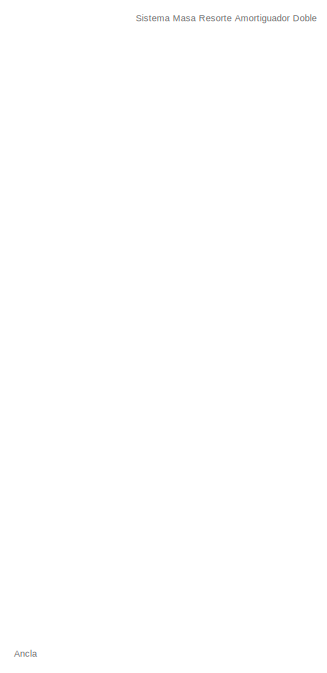
[diagram: root canvas - part 1/5, top left region]
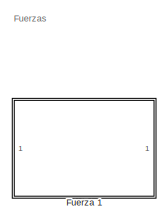
[diagram: root canvas - part 2/5, middle left region]
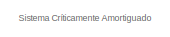
[diagram: root canvas - part 3/5, middle right region]
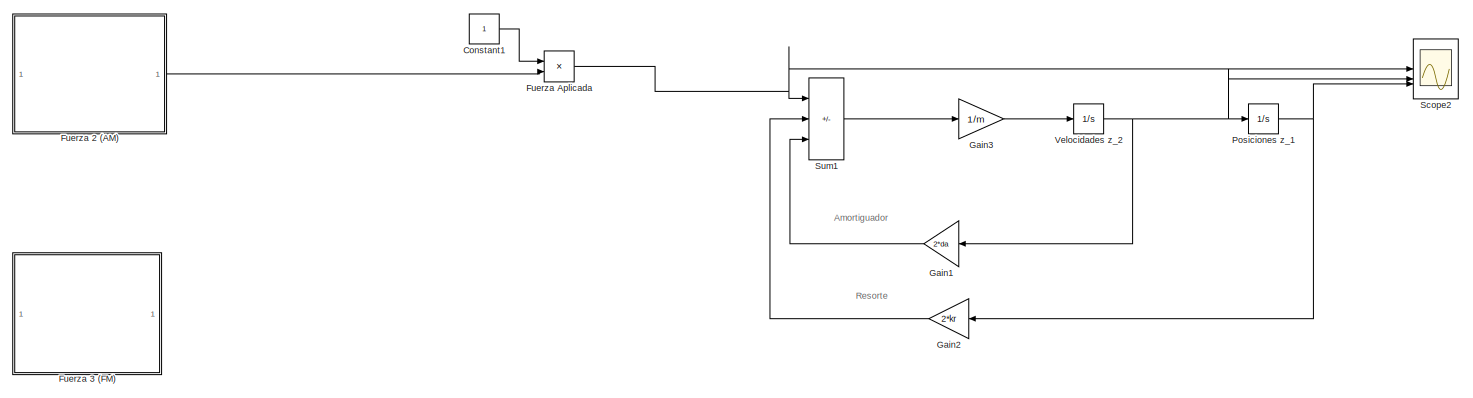
[diagram: root canvas - part 4/5, bottom left region]
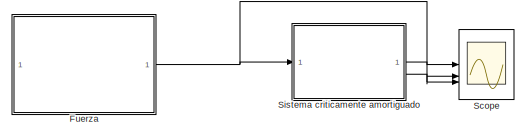
[diagram: root canvas - part 5/5, bottom right region]
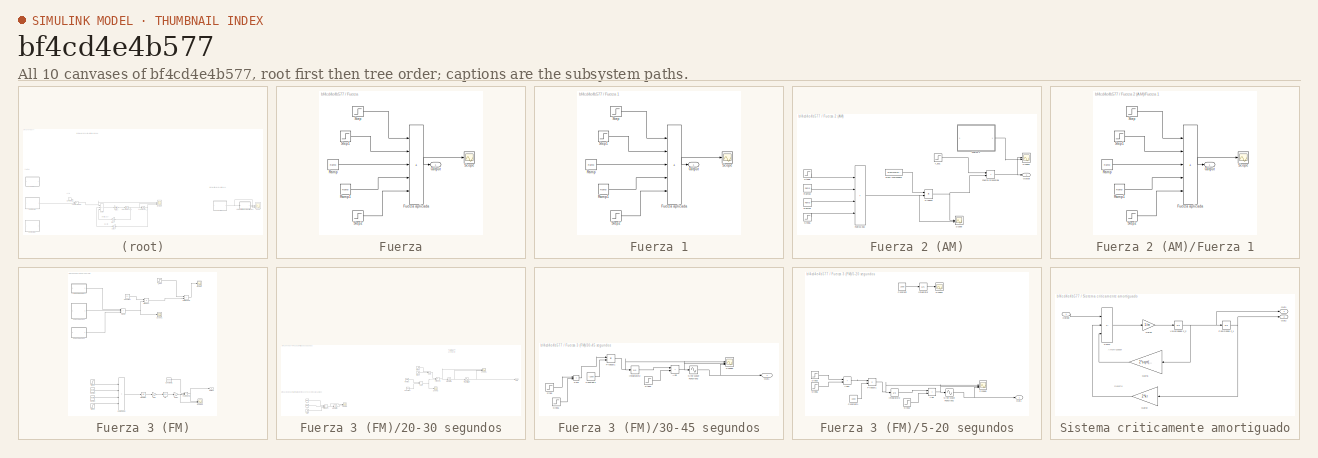
[diagram: thumbnail index - all 10 canvases of the model, root first then tree order]
MODEL slx_bf4cd4e4b577
KIND model
CONFIG AbsTol = auto
CONFIG EnableMultiTasking = off
CONFIG FixedStep = auto
CONFIG MaxStep = 0.01
CONFIG MinStep = auto
CONFIG RelTol = 1e-3
CONFIG SampleTimeConstraint = Unconstrained
CONFIG SolverName = VariableStepAuto
CONFIG StartTime = 0.0
CONFIG StopTime = 60
BLOCK [Constant] Constant1
BLOCK [SubSystem] Fuerza
BLOCK [SubSystem] Fuerza 1
BLOCK [Sum] Fuerza 1/Fuerza aplicada
  IconShape = rectangular
  Inputs = +++++
BLOCK [Outport] Fuerza 1/Output
BLOCK [Reference] Fuerza 1/Ramp  REF=simulink/Sources/Ramp
  SourceBlock = simulink/Sources/Ramp
  SourceType = Ramp
BLOCK [Reference] Fuerza 1/Ramp1  REF=simulink/Sources/Ramp
  SourceBlock = simulink/Sources/Ramp
  SourceType = Ramp
BLOCK [Scope] Fuerza 1/Scope
  Floating = off
  NumInputPorts = 1
  ScopeSpecificationString = Simulink.scopes.TimeScopeBlockCfg('CurrentConfiguration', extmgr.ConfigurationSet(extmgr.Configuration('Core','General UI',true),extmgr.Configuration('Core','Source UI',true),extmgr.Configuration('Sources','WiredSimulink',true,'DataLoggingVariableName','ScopeData1'),extmgr.Configuration('Visuals','Time Domain',true,'SerializedDisplays',{struct('MinYLimReal','3750.00000','MaxYLimReal','6250.00000',...<+1396ch>  <repeated x3 — deduplicated; at blocks: Scope>
BLOCK [Step] Fuerza 1/Step
  After = f1
  SampleTime = 0
  Time = 0
BLOCK [Step] Fuerza 1/Step1
  After = (f2-f1)
  SampleTime = 0
  Time = 5
BLOCK [Step] Fuerza 1/Step2
  After = f1-f3
  SampleTime = 0
  Time = 45
BLOCK [SubSystem] Fuerza 2 (AM)
BLOCK [FromWorkspace] Fuerza 2 (AM)/From Workspace
  VariableName = ST
BLOCK [SubSystem] Fuerza 2 (AM)/Fuerza 1
BLOCK [Sum] Fuerza 2 (AM)/Fuerza 1/Fuerza aplicada
  IconShape = rectangular
  Inputs = +++++
BLOCK [Outport] Fuerza 2 (AM)/Fuerza 1/Output
BLOCK [Reference] Fuerza 2 (AM)/Fuerza 1/Ramp  REF=simulink/Sources/Ramp
  SourceBlock = simulink/Sources/Ramp
  SourceType = Ramp
BLOCK [Reference] Fuerza 2 (AM)/Fuerza 1/Ramp1  REF=simulink/Sources/Ramp
  SourceBlock = simulink/Sources/Ramp
  SourceType = Ramp
BLOCK [Scope] Fuerza 2 (AM)/Fuerza 1/Scope
  Floating = off
  NumInputPorts = 1
BLOCK [Step] Fuerza 2 (AM)/Fuerza 1/Step
  After = f1
  SampleTime = 0
  Time = 0
BLOCK [Step] Fuerza 2 (AM)/Fuerza 1/Step1
  After = (f2-f1)
  SampleTime = 0
  Time = 5
BLOCK [Step] Fuerza 2 (AM)/Fuerza 1/Step2
  After = f1-f3
  SampleTime = 0
  Time = 45
BLOCK [Sum] Fuerza 2 (AM)/Fuerza eac
  IconShape = rectangular
  Inputs = ++++
BLOCK [Sum] Fuerza 2 (AM)/Fuerza sinusoidal
  IconShape = rectangular
BLOCK [Outport] Fuerza 2 (AM)/Output
BLOCK [Product] Fuerza 2 (AM)/Product
BLOCK [Reference] Fuerza 2 (AM)/Ramp2  REF=simulink/Sources/Ramp
  SourceBlock = simulink/Sources/Ramp
  SourceType = Ramp
BLOCK [Reference] Fuerza 2 (AM)/Ramp3  REF=simulink/Sources/Ramp
  SourceBlock = simulink/Sources/Ramp
  SourceType = Ramp
BLOCK [Scope] Fuerza 2 (AM)/Scope
  Floating = off
  NumInputPorts = 2
  ScopeSpecificationString = Simulink.scopes.TimeScopeBlockCfg('CurrentConfiguration', extmgr.ConfigurationSet(extmgr.Configuration('Core','General UI',true),extmgr.Configuration('Core','Source UI',true),extmgr.Configuration('Sources','WiredSimulink',true,'DataLoggingVariableName','ScopeData6'),extmgr.Configuration('Visuals','Time Domain',true,'SerializedDisplays',{struct('MinYLimReal','-1250.00000','MaxYLimReal','1250.00000'...<+1432ch>
BLOCK [Scope] Fuerza 2 (AM)/Scope1
  Floating = off
  NumInputPorts = 2
  ScopeSpecificationString = Simulink.scopes.TimeScopeBlockCfg('CurrentConfiguration', extmgr.ConfigurationSet(extmgr.Configuration('Core','General UI',true),extmgr.Configuration('Core','Source UI',true),extmgr.Configuration('Sources','WiredSimulink',true,'DataLoggingVariableName','ScopeData1'),extmgr.Configuration('Visuals','Time Domain',true,'SerializedDisplays',{struct('MinYLimReal','3750.00000','MaxYLimReal','6250.00000',...<+1459ch>
BLOCK [Step] Fuerza 2 (AM)/Step5
  After = f2-f1
  SampleTime = 0
  Time = 5
BLOCK [Step] Fuerza 2 (AM)/Step6
  After = f1-f3
  SampleTime = 0
  Time = 45
BLOCK [Step] Fuerza 2 (AM)/f_e01
  After = f1
  SampleTime = 0
  Time = 0
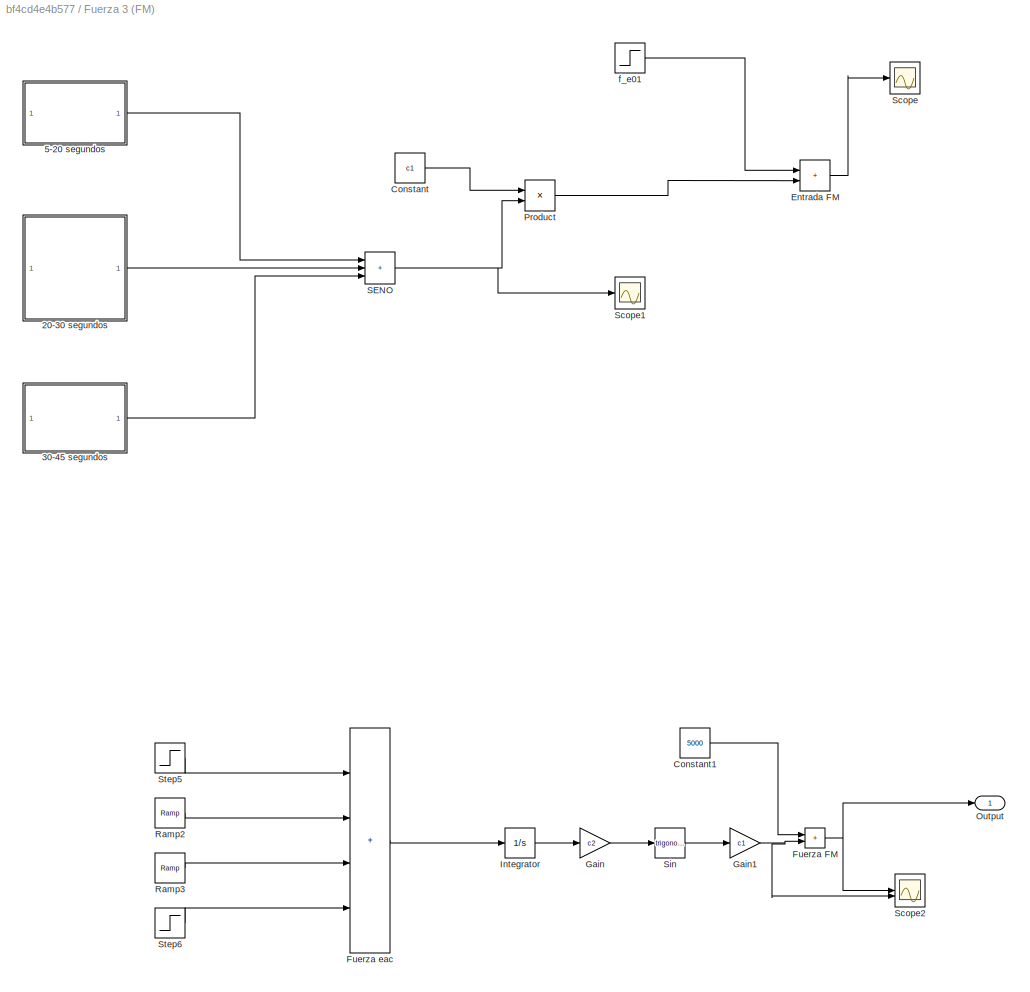
BLOCK [SubSystem] Fuerza 3 (FM)
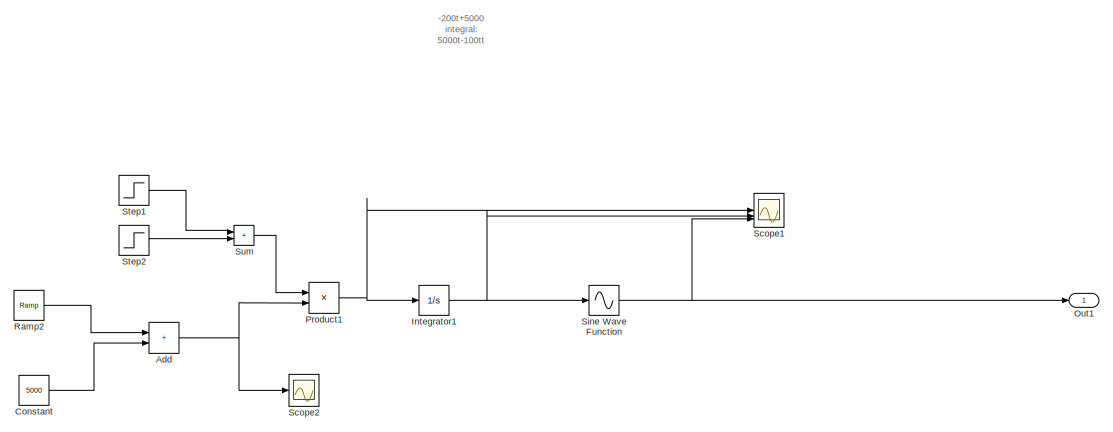
[diagram: Fuerza 3 (FM)/20-30 segundos - part 1/2, middle right region]
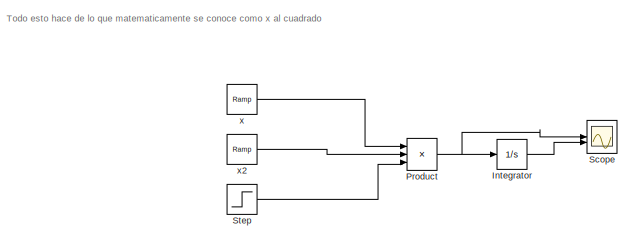
[diagram: Fuerza 3 (FM)/20-30 segundos - part 2/2, bottom left region]
BLOCK [SubSystem] Fuerza 3 (FM)/20-30 segundos
BLOCK [Sum] Fuerza 3 (FM)/20-30 segundos/Add
  IconShape = rectangular
BLOCK [Constant] Fuerza 3 (FM)/20-30 segundos/Constant
  Value = 5000
BLOCK [Integrator] Fuerza 3 (FM)/20-30 segundos/Integrator
  LimitOutput = on
  LowerSaturationLimit = 0
BLOCK [Integrator] Fuerza 3 (FM)/20-30 segundos/Integrator1
BLOCK [Outport] Fuerza 3 (FM)/20-30 segundos/Out1
BLOCK [Product] Fuerza 3 (FM)/20-30 segundos/Product
  Inputs = 3
BLOCK [Product] Fuerza 3 (FM)/20-30 segundos/Product1
BLOCK [Reference] Fuerza 3 (FM)/20-30 segundos/Ramp2  REF=simulink/Sources/Ramp
  SourceBlock = simulink/Sources/Ramp
  SourceType = Ramp
BLOCK [Scope] Fuerza 3 (FM)/20-30 segundos/Scope
  Floating = off
  NumInputPorts = 2
  ScopeSpecificationString = Simulink.scopes.TimeScopeBlockCfg('CurrentConfiguration', extmgr.ConfigurationSet(extmgr.Configuration('Core','General UI',true),extmgr.Configuration('Core','Source UI',true),extmgr.Configuration('Sources','WiredSimulink',true,'DataLoggingVariableName','ScopeData5'),extmgr.Configuration('Visuals','Time Domain',true,'SerializedDisplays',{struct('MinYLimReal','-9000.00000','MaxYLimReal','81000.00000...<+1480ch>
BLOCK [Scope] Fuerza 3 (FM)/20-30 segundos/Scope1
  Floating = off
  NumInputPorts = 3
  ScopeSpecificationString = Simulink.scopes.TimeScopeBlockCfg('CurrentConfiguration', extmgr.ConfigurationSet(extmgr.Configuration('Core','General UI',true),extmgr.Configuration('Core','Source UI',true),extmgr.Configuration('Sources','WiredSimulink',true,'DataLoggingVariableName','ScopeData7'),extmgr.Configuration('Visuals','Time Domain',true,'SerializedDisplays',{struct('MinYLimReal','-1250.00000','MaxYLimReal','1250.00000'...<+2827ch>
BLOCK [Scope] Fuerza 3 (FM)/20-30 segundos/Scope2
  Floating = off
  NumInputPorts = 1
  ScopeSpecificationString = Simulink.scopes.TimeScopeBlockCfg('CurrentConfiguration', extmgr.ConfigurationSet(extmgr.Configuration('Core','General UI',true),extmgr.Configuration('Core','Source UI',true),extmgr.Configuration('Sources','WiredSimulink',true,'DataLoggingVariableName','ScopeData3'),extmgr.Configuration('Visuals','Time Domain',true,'SerializedDisplays',{struct('MinYLimReal','-8500.00000','MaxYLimReal','6500.00000'...<+1384ch>
BLOCK [Sin] Fuerza 3 (FM)/20-30 segundos/Sine Wave Function
  SampleTime = 0
  TimeSource = Use external signal
BLOCK [Step] Fuerza 3 (FM)/20-30 segundos/Step
  SampleTime = 0
  Time = 0
BLOCK [Step] Fuerza 3 (FM)/20-30 segundos/Step1
  SampleTime = 0
  Time = 20
BLOCK [Step] Fuerza 3 (FM)/20-30 segundos/Step2
  After = -1
  SampleTime = 0
  Time = 30
BLOCK [Sum] Fuerza 3 (FM)/20-30 segundos/Sum
  IconShape = rectangular
BLOCK [Reference] Fuerza 3 (FM)/20-30 segundos/x  REF=simulink/Sources/Ramp
  SourceBlock = simulink/Sources/Ramp
  SourceType = Ramp
BLOCK [Reference] Fuerza 3 (FM)/20-30 segundos/x2  REF=simulink/Sources/Ramp
  SourceBlock = simulink/Sources/Ramp
  SourceType = Ramp
BLOCK [SubSystem] Fuerza 3 (FM)/30-45 segundos
BLOCK [Sum] Fuerza 3 (FM)/30-45 segundos/Add
  IconShape = rectangular
BLOCK [Constant] Fuerza 3 (FM)/30-45 segundos/Constant1
  Value = -1000
BLOCK [Integrator] Fuerza 3 (FM)/30-45 segundos/Integrator2
BLOCK [Outport] Fuerza 3 (FM)/30-45 segundos/Out1
BLOCK [Product] Fuerza 3 (FM)/30-45 segundos/Product1
BLOCK [Scope] Fuerza 3 (FM)/30-45 segundos/Scope5
  Floating = off
  NumInputPorts = 3
  ScopeSpecificationString = Simulink.scopes.TimeScopeBlockCfg('CurrentConfiguration', extmgr.ConfigurationSet(extmgr.Configuration('Core','General UI',true),extmgr.Configuration('Core','Source UI',true),extmgr.Configuration('Sources','WiredSimulink',true,'DataLoggingVariableName','ScopeData5'),extmgr.Configuration('Visuals','Time Domain',true,'SerializedDisplays',{struct('MinYLimReal','-1125.00000','MaxYLimReal','125.00000',...<+2794ch>
BLOCK [Sin] Fuerza 3 (FM)/30-45 segundos/Sine Wave Function2
  SampleTime = 0
  TimeSource = Use external signal
BLOCK [Step] Fuerza 3 (FM)/30-45 segundos/Step
  SampleTime = 0
  Time = 30
BLOCK [Step] Fuerza 3 (FM)/30-45 segundos/Step1
  After = -1
  SampleTime = 0
  Time = 45
BLOCK [Step] Fuerza 3 (FM)/30-45 segundos/Step2
  After = -15000
  SampleTime = 0
  Time = 45
BLOCK [Sum] Fuerza 3 (FM)/30-45 segundos/Sum
  IconShape = rectangular
BLOCK [SubSystem] Fuerza 3 (FM)/5-20 segundos
BLOCK [Sum] Fuerza 3 (FM)/5-20 segundos/Add
  IconShape = rectangular
BLOCK [Sum] Fuerza 3 (FM)/5-20 segundos/Add1
  IconShape = rectangular
BLOCK [Constant] Fuerza 3 (FM)/5-20 segundos/Constant
  Value = 1000
BLOCK [Constant] Fuerza 3 (FM)/5-20 segundos/Constant1
  Value = 1000
BLOCK [Integrator] Fuerza 3 (FM)/5-20 segundos/Integrator
  InitialCondition = 5
  LimitOutput = on
  LowerSaturationLimit = 5
  UpperSaturationLimit = 10
BLOCK [Integrator] Fuerza 3 (FM)/5-20 segundos/Integrator2
BLOCK [Outport] Fuerza 3 (FM)/5-20 segundos/Out1
BLOCK [Product] Fuerza 3 (FM)/5-20 segundos/Product1
BLOCK [Scope] Fuerza 3 (FM)/5-20 segundos/Scope1
  Floating = off
  NumInputPorts = 1
  ScopeSpecificationString = Simulink.scopes.TimeScopeBlockCfg('CurrentConfiguration', extmgr.ConfigurationSet(extmgr.Configuration('Core','General UI',true),extmgr.Configuration('Core','Source UI',true),extmgr.Configuration('Sources','WiredSimulink',true,'DataLoggingVariableName','ScopeData4'),extmgr.Configuration('Visuals','Time Domain',true,'SerializedDisplays',{struct('MinYLimReal','4.375','MaxYLimReal','10.625','YLabelRe...<+1380ch>
BLOCK [Scope] Fuerza 3 (FM)/5-20 segundos/Scope5
  Floating = off
  NumInputPorts = 3
  ScopeSpecificationString = Simulink.scopes.TimeScopeBlockCfg('CurrentConfiguration', extmgr.ConfigurationSet(extmgr.Configuration('Core','General UI',true),extmgr.Configuration('Core','Source UI',true),extmgr.Configuration('Sources','WiredSimulink',true,'DataLoggingVariableName','ScopeData10'),extmgr.Configuration('Visuals','Time Domain',true,'SerializedDisplays',{struct('MinYLimReal','-125.00000','MaxYLimReal','1125.00000'...<+2818ch>
BLOCK [Sin] Fuerza 3 (FM)/5-20 segundos/Sine Wave Function2
  SampleTime = 0
  TimeSource = Use external signal
BLOCK [Step] Fuerza 3 (FM)/5-20 segundos/Step2
  After = -15000
  SampleTime = 0
  Time = 20
BLOCK [Step] Fuerza 3 (FM)/5-20 segundos/Step3
  SampleTime = 0
  Time = 5
BLOCK [Step] Fuerza 3 (FM)/5-20 segundos/Step5
  After = -1
  SampleTime = 0
  Time = 20
BLOCK [Constant] Fuerza 3 (FM)/Constant
  Value = c1
BLOCK [Constant] Fuerza 3 (FM)/Constant1
  Value = 5000
BLOCK [Sum] Fuerza 3 (FM)/Entrada FM
  IconShape = rectangular
BLOCK [Sum] Fuerza 3 (FM)/Fuerza FM
  IconShape = rectangular
BLOCK [Sum] Fuerza 3 (FM)/Fuerza eac
  IconShape = rectangular
  Inputs = ++++
BLOCK [Gain] Fuerza 3 (FM)/Gain
  Gain = c2
BLOCK [Gain] Fuerza 3 (FM)/Gain1
  Gain = c1
BLOCK [Integrator] Fuerza 3 (FM)/Integrator
BLOCK [Outport] Fuerza 3 (FM)/Output
BLOCK [Product] Fuerza 3 (FM)/Product
BLOCK [Reference] Fuerza 3 (FM)/Ramp2  REF=simulink/Sources/Ramp
  SourceBlock = simulink/Sources/Ramp
  SourceType = Ramp
BLOCK [Reference] Fuerza 3 (FM)/Ramp3  REF=simulink/Sources/Ramp
  SourceBlock = simulink/Sources/Ramp
  SourceType = Ramp
BLOCK [Sum] Fuerza 3 (FM)/SENO
  IconShape = rectangular
  Inputs = +++
BLOCK [Scope] Fuerza 3 (FM)/Scope
  Floating = off
  NumInputPorts = 1
  ScopeSpecificationString = Simulink.scopes.TimeScopeBlockCfg('CurrentConfiguration', extmgr.ConfigurationSet(extmgr.Configuration('Core','General UI',true),extmgr.Configuration('Core','Source UI',true),extmgr.Configuration('Sources','WiredSimulink',true,'DataLoggingVariableName','ScopeData3'),extmgr.Configuration('Visuals','Time Domain',true,'SerializedDisplays',{struct('MinYLimReal','3750.11423','MaxYLimReal','6249.98221',...<+1408ch>
BLOCK [Scope] Fuerza 3 (FM)/Scope1
  Floating = off
  NumInputPorts = 1
  ScopeSpecificationString = Simulink.scopes.TimeScopeBlockCfg('CurrentConfiguration', extmgr.ConfigurationSet(extmgr.Configuration('Core','General UI',true),extmgr.Configuration('Core','Source UI',true),extmgr.Configuration('Sources','WiredSimulink',true,'DataLoggingVariableName','ScopeData1'),extmgr.Configuration('Visuals','Time Domain',true,'SerializedDisplays',{struct('MinYLimReal','-1.24989','MaxYLimReal','1.24998','YLab...<+1388ch>
BLOCK [Scope] Fuerza 3 (FM)/Scope2
  Floating = off
  NumInputPorts = 2
  ScopeSpecificationString = Simulink.scopes.TimeScopeBlockCfg('CurrentConfiguration', extmgr.ConfigurationSet(extmgr.Configuration('Core','General UI',true),extmgr.Configuration('Core','Source UI',true),extmgr.Configuration('Sources','WiredSimulink',true,'DataLoggingVariableName','ScopeData1'),extmgr.Configuration('Visuals','Time Domain',true,'SerializedDisplays',{struct('MinYLimReal','3750.00000','MaxYLimReal','6250.00000',...<+2095ch>
BLOCK [Trigonometry] Fuerza 3 (FM)/Sin
BLOCK [Step] Fuerza 3 (FM)/Step5
  After = f2-f1
  SampleTime = 0
  Time = 5
BLOCK [Step] Fuerza 3 (FM)/Step6
  After = f1-f3
  SampleTime = 0
  Time = 45
BLOCK [Step] Fuerza 3 (FM)/f_e01
  After = f1
  SampleTime = 0
  Time = 0
BLOCK [Product] Fuerza Aplicada
BLOCK [Sum] Fuerza/Fuerza aplicada
  IconShape = rectangular
  Inputs = +++++
BLOCK [Outport] Fuerza/Output
BLOCK [Reference] Fuerza/Ramp  REF=simulink/Sources/Ramp
  SourceBlock = simulink/Sources/Ramp
  SourceType = Ramp
BLOCK [Reference] Fuerza/Ramp1  REF=simulink/Sources/Ramp
  SourceBlock = simulink/Sources/Ramp
  SourceType = Ramp
BLOCK [Scope] Fuerza/Scope
  Floating = off
  NumInputPorts = 1
BLOCK [Step] Fuerza/Step
  After = f1
  SampleTime = 0
  Time = 0
BLOCK [Step] Fuerza/Step1
  After = (f2-f1)
  SampleTime = 0
  Time = 5
BLOCK [Step] Fuerza/Step2
  After = f1-f3
  SampleTime = 0
  Time = 45
BLOCK [Gain] Gain1
  Gain = 2*da
BLOCK [Gain] Gain2
  Gain = 2*kr
BLOCK [Gain] Gain3
  Gain = 1/m
BLOCK [Integrator] Posiciones z_1
BLOCK [Scope] Scope
  Floating = off
  NumInputPorts = 3
  ScopeSpecificationString = Simulink.scopes.TimeScopeBlockCfg('CurrentConfiguration', extmgr.ConfigurationSet(extmgr.Configuration('Core','General UI',true),extmgr.Configuration('Core','Source UI',true),extmgr.Configuration('Sources','WiredSimulink',true,'DataLoggingVariableName','ScopeData1'),extmgr.Configuration('Visuals','Time Domain',true,'SerializedDisplays',{struct('MinYLimReal','3750.00000','MaxYLimReal','6250.00000',...<+2844ch>
BLOCK [Scope] Scope2
  Floating = off
  NumInputPorts = 3
  ScopeSpecificationString = Simulink.scopes.TimeScopeBlockCfg('CurrentConfiguration', extmgr.ConfigurationSet(extmgr.Configuration('Core','General UI',true),extmgr.Configuration('Core','Source UI',true),extmgr.Configuration('Sources','WiredSimulink',true,'DataLoggingVariableName','ScopeData3'),extmgr.Configuration('Visuals','Time Domain',true,'SerializedDisplays',{struct('MinYLimReal','3750.00000','MaxYLimReal','6250.00000',...<+2817ch>
BLOCK [SubSystem] Sistema criticamente amortiguado
BLOCK [Gain] Sistema criticamente amortiguado/Gain1
  Gain = 2*sqrt(10000*kr)
BLOCK [Gain] Sistema criticamente amortiguado/Gain2
  Gain = 2*kr
BLOCK [Gain] Sistema criticamente amortiguado/Gain6
  Gain = 1/m
BLOCK [Outport] Sistema criticamente amortiguado/Out1
BLOCK [Outport] Sistema criticamente amortiguado/Out2
  Port = 2
BLOCK [Inport] Sistema criticamente amortiguado/Output
BLOCK [Integrator] Sistema criticamente amortiguado/Posiciones z_1
BLOCK [Sum] Sistema criticamente amortiguado/Sum2
  IconShape = rectangular
  Inputs = +--
BLOCK [Integrator] Sistema criticamente amortiguado/Velocidades z_2
BLOCK [Sum] Sum1
  IconShape = rectangular
  Inputs = +--
BLOCK [Integrator] Velocidades z_2
ANNOTATION (root): Sistema Críticamente Amortiguado
ANNOTATION (root): Sistema Masa Resorte Amortiguador Doble
ANNOTATION (root): Ancla
ANNOTATION (root): Fuerzas
ANNOTATION (root): Amortiguador
ANNOTATION (root): Resorte
ANNOTATION Fuerza 3 (FM)/20-30 segundos: -200t+5000 integral: 5000t-100tt
ANNOTATION Fuerza 3 (FM)/20-30 segundos: Todo esto hace de lo que matematicamente se conoce como x al cuadrado
ANNOTATION Sistema criticamente amortiguado: Amortiguador
ANNOTATION Sistema criticamente amortiguado: Resorte
LINE Constant1:1 -> Fuerza Aplicada:1
NET Fuerza 1/Fuerza aplicada:1 -> Fuerza 1/Output:1, Fuerza 1/Scope:1
LINE Fuerza 1/Ramp1:1 -> Fuerza 1/Fuerza aplicada:4
LINE Fuerza 1/Ramp:1 -> Fuerza 1/Fuerza aplicada:3
LINE Fuerza 1/Step1:1 -> Fuerza 1/Fuerza aplicada:2
LINE Fuerza 1/Step2:1 -> Fuerza 1/Fuerza aplicada:5
LINE Fuerza 1/Step:1 -> Fuerza 1/Fuerza aplicada:1
LINE Fuerza 2 (AM)/From Workspace:1 -> Fuerza 2 (AM)/Product:1
NET Fuerza 2 (AM)/Fuerza 1/Fuerza aplicada:1 -> Fuerza 2 (AM)/Fuerza 1/Output:1, Fuerza 2 (AM)/Fuerza 1/Scope:1
LINE Fuerza 2 (AM)/Fuerza 1/Ramp1:1 -> Fuerza 2 (AM)/Fuerza 1/Fuerza aplicada:4
LINE Fuerza 2 (AM)/Fuerza 1/Ramp:1 -> Fuerza 2 (AM)/Fuerza 1/Fuerza aplicada:3
LINE Fuerza 2 (AM)/Fuerza 1/Step1:1 -> Fuerza 2 (AM)/Fuerza 1/Fuerza aplicada:2
LINE Fuerza 2 (AM)/Fuerza 1/Step2:1 -> Fuerza 2 (AM)/Fuerza 1/Fuerza aplicada:5
LINE Fuerza 2 (AM)/Fuerza 1/Step:1 -> Fuerza 2 (AM)/Fuerza 1/Fuerza aplicada:1
LINE Fuerza 2 (AM)/Fuerza 1:1 -> Fuerza 2 (AM)/Scope1:2
NET Fuerza 2 (AM)/Fuerza eac:1 -> Fuerza 2 (AM)/Product:2, Fuerza 2 (AM)/Scope:2
NET Fuerza 2 (AM)/Fuerza sinusoidal:1 -> Fuerza 2 (AM)/Output:1, Fuerza 2 (AM)/Scope1:1
NET Fuerza 2 (AM)/Product:1 -> Fuerza 2 (AM)/Fuerza sinusoidal:2, Fuerza 2 (AM)/Scope:1
LINE Fuerza 2 (AM)/Ramp2:1 -> Fuerza 2 (AM)/Fuerza eac:2
LINE Fuerza 2 (AM)/Ramp3:1 -> Fuerza 2 (AM)/Fuerza eac:3
LINE Fuerza 2 (AM)/Step5:1 -> Fuerza 2 (AM)/Fuerza eac:1
LINE Fuerza 2 (AM)/Step6:1 -> Fuerza 2 (AM)/Fuerza eac:4
LINE Fuerza 2 (AM)/f_e01:1 -> Fuerza 2 (AM)/Fuerza sinusoidal:1
LINE Fuerza 2 (AM):1 -> Fuerza Aplicada:2
NET Fuerza 3 (FM)/20-30 segundos/Add:1 -> Fuerza 3 (FM)/20-30 segundos/Product1:2, Fuerza 3 (FM)/20-30 segundos/Scope2:1
LINE Fuerza 3 (FM)/20-30 segundos/Constant:1 -> Fuerza 3 (FM)/20-30 segundos/Add:2
NET Fuerza 3 (FM)/20-30 segundos/Integrator1:1 -> Fuerza 3 (FM)/20-30 segundos/Scope1:2, Fuerza 3 (FM)/20-30 segundos/Sine Wave Function:1
LINE Fuerza 3 (FM)/20-30 segundos/Integrator:1 -> Fuerza 3 (FM)/20-30 segundos/Scope:2
NET Fuerza 3 (FM)/20-30 segundos/Product1:1 -> Fuerza 3 (FM)/20-30 segundos/Integrator1:1, Fuerza 3 (FM)/20-30 segundos/Scope1:1
NET Fuerza 3 (FM)/20-30 segundos/Product:1 -> Fuerza 3 (FM)/20-30 segundos/Integrator:1, Fuerza 3 (FM)/20-30 segundos/Scope:1
LINE Fuerza 3 (FM)/20-30 segundos/Ramp2:1 -> Fuerza 3 (FM)/20-30 segundos/Add:1
NET Fuerza 3 (FM)/20-30 segundos/Sine Wave Function:1 -> Fuerza 3 (FM)/20-30 segundos/Out1:1, Fuerza 3 (FM)/20-30 segundos/Scope1:3
LINE Fuerza 3 (FM)/20-30 segundos/Step1:1 -> Fuerza 3 (FM)/20-30 segundos/Sum:1
LINE Fuerza 3 (FM)/20-30 segundos/Step2:1 -> Fuerza 3 (FM)/20-30 segundos/Sum:2
LINE Fuerza 3 (FM)/20-30 segundos/Step:1 -> Fuerza 3 (FM)/20-30 segundos/Product:3
LINE Fuerza 3 (FM)/20-30 segundos/Sum:1 -> Fuerza 3 (FM)/20-30 segundos/Product1:1
LINE Fuerza 3 (FM)/20-30 segundos/x2:1 -> Fuerza 3 (FM)/20-30 segundos/Product:2
LINE Fuerza 3 (FM)/20-30 segundos/x:1 -> Fuerza 3 (FM)/20-30 segundos/Product:1
LINE Fuerza 3 (FM)/20-30 segundos:1 -> Fuerza 3 (FM)/SENO:2
NET Fuerza 3 (FM)/30-45 segundos/Add:1 -> Fuerza 3 (FM)/30-45 segundos/Scope5:2, Fuerza 3 (FM)/30-45 segundos/Sine Wave Function2:1
LINE Fuerza 3 (FM)/30-45 segundos/Constant1:1 -> Fuerza 3 (FM)/30-45 segundos/Product1:2
LINE Fuerza 3 (FM)/30-45 segundos/Integrator2:1 -> Fuerza 3 (FM)/30-45 segundos/Add:1
NET Fuerza 3 (FM)/30-45 segundos/Product1:1 -> Fuerza 3 (FM)/30-45 segundos/Integrator2:1, Fuerza 3 (FM)/30-45 segundos/Scope5:1
NET Fuerza 3 (FM)/30-45 segundos/Sine Wave Function2:1 -> Fuerza 3 (FM)/30-45 segundos/Out1:1, Fuerza 3 (FM)/30-45 segundos/Scope5:3
LINE Fuerza 3 (FM)/30-45 segundos/Step1:1 -> Fuerza 3 (FM)/30-45 segundos/Sum:2
LINE Fuerza 3 (FM)/30-45 segundos/Step2:1 -> Fuerza 3 (FM)/30-45 segundos/Add:2
LINE Fuerza 3 (FM)/30-45 segundos/Step:1 -> Fuerza 3 (FM)/30-45 segundos/Sum:1
LINE Fuerza 3 (FM)/30-45 segundos/Sum:1 -> Fuerza 3 (FM)/30-45 segundos/Product1:1
LINE Fuerza 3 (FM)/30-45 segundos:1 -> Fuerza 3 (FM)/SENO:3
LINE Fuerza 3 (FM)/5-20 segundos/Add1:1 -> Fuerza 3 (FM)/5-20 segundos/Product1:1
NET Fuerza 3 (FM)/5-20 segundos/Add:1 -> Fuerza 3 (FM)/5-20 segundos/Scope5:2, Fuerza 3 (FM)/5-20 segundos/Sine Wave Function2:1
LINE Fuerza 3 (FM)/5-20 segundos/Constant1:1 -> Fuerza 3 (FM)/5-20 segundos/Product1:2
LINE Fuerza 3 (FM)/5-20 segundos/Constant:1 -> Fuerza 3 (FM)/5-20 segundos/Integrator:1
LINE Fuerza 3 (FM)/5-20 segundos/Integrator2:1 -> Fuerza 3 (FM)/5-20 segundos/Add:1
LINE Fuerza 3 (FM)/5-20 segundos/Integrator:1 -> Fuerza 3 (FM)/5-20 segundos/Scope1:1
NET Fuerza 3 (FM)/5-20 segundos/Product1:1 -> Fuerza 3 (FM)/5-20 segundos/Integrator2:1, Fuerza 3 (FM)/5-20 segundos/Scope5:1
NET Fuerza 3 (FM)/5-20 segundos/Sine Wave Function2:1 -> Fuerza 3 (FM)/5-20 segundos/Out1:1, Fuerza 3 (FM)/5-20 segundos/Scope5:3
LINE Fuerza 3 (FM)/5-20 segundos/Step2:1 -> Fuerza 3 (FM)/5-20 segundos/Add:2
LINE Fuerza 3 (FM)/5-20 segundos/Step3:1 -> Fuerza 3 (FM)/5-20 segundos/Add1:1
LINE Fuerza 3 (FM)/5-20 segundos/Step5:1 -> Fuerza 3 (FM)/5-20 segundos/Add1:2
LINE Fuerza 3 (FM)/5-20 segundos:1 -> Fuerza 3 (FM)/SENO:1
LINE Fuerza 3 (FM)/Constant1:1 -> Fuerza 3 (FM)/Fuerza FM:1
LINE Fuerza 3 (FM)/Constant:1 -> Fuerza 3 (FM)/Product:1
LINE Fuerza 3 (FM)/Entrada FM:1 -> Fuerza 3 (FM)/Scope:1
NET Fuerza 3 (FM)/Fuerza FM:1 -> Fuerza 3 (FM)/Output:1, Fuerza 3 (FM)/Scope2:1
LINE Fuerza 3 (FM)/Fuerza eac:1 -> Fuerza 3 (FM)/Integrator:1
NET Fuerza 3 (FM)/Gain1:1 -> Fuerza 3 (FM)/Fuerza FM:2, Fuerza 3 (FM)/Scope2:2
LINE Fuerza 3 (FM)/Gain:1 -> Fuerza 3 (FM)/Sin:1
LINE Fuerza 3 (FM)/Integrator:1 -> Fuerza 3 (FM)/Gain:1
LINE Fuerza 3 (FM)/Product:1 -> Fuerza 3 (FM)/Entrada FM:2
LINE Fuerza 3 (FM)/Ramp2:1 -> Fuerza 3 (FM)/Fuerza eac:2
LINE Fuerza 3 (FM)/Ramp3:1 -> Fuerza 3 (FM)/Fuerza eac:3
NET Fuerza 3 (FM)/SENO:1 -> Fuerza 3 (FM)/Product:2, Fuerza 3 (FM)/Scope1:1
LINE Fuerza 3 (FM)/Sin:1 -> Fuerza 3 (FM)/Gain1:1
LINE Fuerza 3 (FM)/Step5:1 -> Fuerza 3 (FM)/Fuerza eac:1
LINE Fuerza 3 (FM)/Step6:1 -> Fuerza 3 (FM)/Fuerza eac:4
LINE Fuerza 3 (FM)/f_e01:1 -> Fuerza 3 (FM)/Entrada FM:1
NET Fuerza Aplicada:1 -> Scope2:1, Sum1:1
NET Fuerza/Fuerza aplicada:1 -> Fuerza/Output:1, Fuerza/Scope:1
LINE Fuerza/Ramp1:1 -> Fuerza/Fuerza aplicada:4
LINE Fuerza/Ramp:1 -> Fuerza/Fuerza aplicada:3
LINE Fuerza/Step1:1 -> Fuerza/Fuerza aplicada:2
LINE Fuerza/Step2:1 -> Fuerza/Fuerza aplicada:5
LINE Fuerza/Step:1 -> Fuerza/Fuerza aplicada:1
NET Fuerza:1 -> Scope:1, Sistema criticamente amortiguado:1
LINE Gain1:1 -> Sum1:3
LINE Gain2:1 -> Sum1:2
LINE Gain3:1 -> Velocidades z_2:1
NET Posiciones z_1:1 -> Gain2:1, Scope2:3
LINE Sistema criticamente amortiguado/Gain1:1 -> Sistema criticamente amortiguado/Sum2:3
LINE Sistema criticamente amortiguado/Gain2:1 -> Sistema criticamente amortiguado/Sum2:2
LINE Sistema criticamente amortiguado/Gain6:1 -> Sistema criticamente amortiguado/Velocidades z_2:1
LINE Sistema criticamente amortiguado/Output:1 -> Sistema criticamente amortiguado/Sum2:1
NET Sistema criticamente amortiguado/Posiciones z_1:1 -> Sistema criticamente amortiguado/Gain2:1, Sistema criticamente amortiguado/Out2:1
LINE Sistema criticamente amortiguado/Sum2:1 -> Sistema criticamente amortiguado/Gain6:1
NET Sistema criticamente amortiguado/Velocidades z_2:1 -> Sistema criticamente amortiguado/Gain1:1, Sistema criticamente amortiguado/Out1:1, Sistema criticamente amortiguado/Posiciones z_1:1
LINE Sistema criticamente amortiguado:1 -> Scope:2
LINE Sistema criticamente amortiguado:2 -> Scope:3
LINE Sum1:1 -> Gain3:1
NET Velocidades z_2:1 -> Gain1:1, Posiciones z_1:1, Scope2:2
note: NET lines group one-source signal fan-out (src -> all destinations, sorted); 1:1 wires keep LINE
